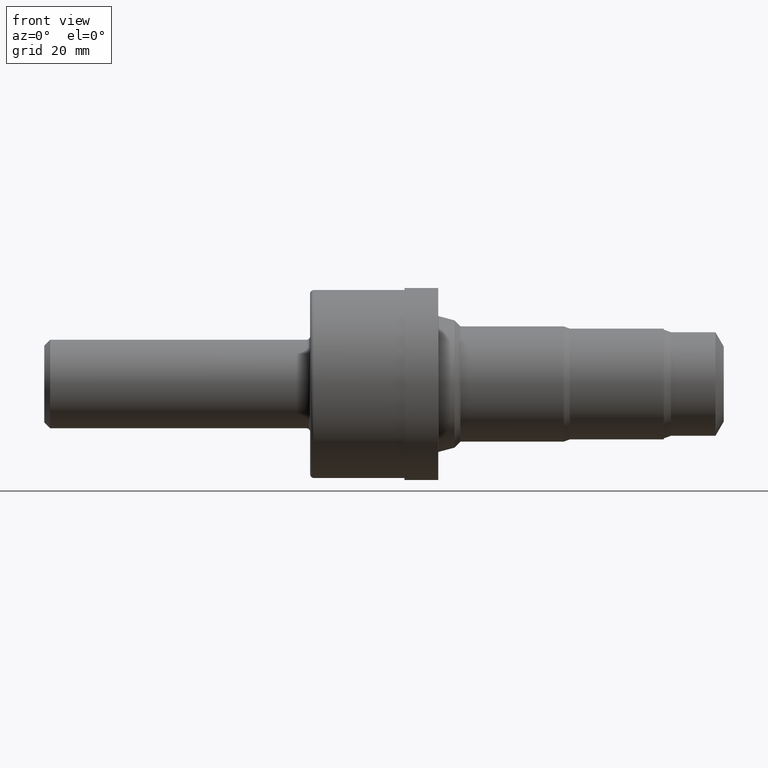
[diagram: clean part render]
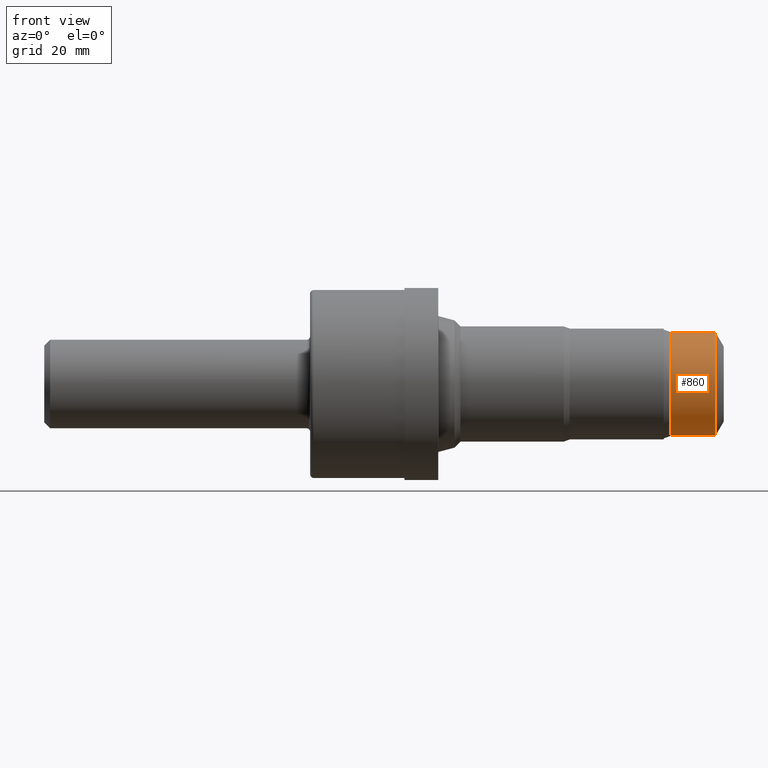
[diagram: same view with one face highlighted and labeled with its STEP entity id]
A machine part, front view. The second image highlights one B-rep face of the part: STEP entity #860.
In plain terms, the highlighted cylindrical surface (partial cylindrical patch) has radius 11.1227 mm, axis along (-1, -0, -0).
Its self-contained STEP definition (entity closure, byte-faithful):
#12 = VERTEX_POINT ( 'NONE', #132 ) ;
#72 = EDGE_CURVE ( 'NONE', #12, #241, #933, .T. ) ;
#96 = ORIENTED_EDGE ( 'NONE', *, *, #628, .F. ) ;
#116 = ORIENTED_EDGE ( 'NONE', *, *, #279, .F. ) ;
#132 = CARTESIAN_POINT ( 'NONE',  ( 5.679999999999999716, 0.0000000000000000000, 0.4379000000000000115 ) ) ;
#170 = VERTEX_POINT ( 'NONE', #636 ) ;
#189 = CARTESIAN_POINT ( 'NONE',  ( 0.0000000000000000000, 0.0000000000000000000, 0.4379000000000000115 ) ) ;
#194 = CARTESIAN_POINT ( 'NONE',  ( 5.303999999999998494, 0.0000000000000000000, 0.0000000000000000000 ) ) ;
#201 = DIRECTION ( 'NONE',  ( -1.000000000000000000, -0.0000000000000000000, -0.0000000000000000000 ) ) ;
#215 = DIRECTION ( 'NONE',  ( -1.000000000000000000, -0.0000000000000000000, -0.0000000000000000000 ) ) ;
#241 = VERTEX_POINT ( 'NONE', #327 ) ;
#254 = EDGE_CURVE ( 'NONE', #170, #12, #946, .T. ) ;
#267 = CIRCLE ( 'NONE', #913, 0.4379000000000000115 ) ;
#279 = EDGE_CURVE ( 'NONE', #170, #474, #527, .T. ) ;
#316 = DIRECTION ( 'NONE',  ( -1.000000000000000000, -0.0000000000000000000, -0.0000000000000000000 ) ) ;
#327 = CARTESIAN_POINT ( 'NONE',  ( 5.303999999999998494, 0.0000000000000000000, 0.4379000000000000115 ) ) ;
#331 = FACE_OUTER_BOUND ( 'NONE', #608, .T. ) ;
#361 = AXIS2_PLACEMENT_3D ( 'NONE', #955, #215, #691 ) ;
#414 = AXIS2_PLACEMENT_3D ( 'NONE', #921, #927, #604 ) ;
#474 = VERTEX_POINT ( 'NONE', #496 ) ;
#496 = CARTESIAN_POINT ( 'NONE',  ( 5.303999999999998494, 5.362728333466259899E-17, -0.4379000000000000115 ) ) ;
#527 = LINE ( 'NONE', #869, #710 ) ;
#540 = ORIENTED_EDGE ( 'NONE', *, *, #254, .T. ) ;
#604 = DIRECTION ( 'NONE',  ( 0.0000000000000000000, 0.0000000000000000000, 1.000000000000000000 ) ) ;
#608 = EDGE_LOOP ( 'NONE', ( #116, #540, #680, #96 ) ) ;
#628 = EDGE_CURVE ( 'NONE', #474, #241, #267, .T. ) ;
#636 = CARTESIAN_POINT ( 'NONE',  ( 5.679999999999999716, 5.362728333466260515E-17, -0.4379000000000000115 ) ) ;
#640 = DIRECTION ( 'NONE',  ( 0.0000000000000000000, 0.0000000000000000000, 1.000000000000000000 ) ) ;
#680 = ORIENTED_EDGE ( 'NONE', *, *, #72, .T. ) ;
#682 = CYLINDRICAL_SURFACE ( 'NONE', #414, 0.4379000000000000115 ) ;
#691 = DIRECTION ( 'NONE',  ( 0.0000000000000000000, 0.0000000000000000000, 1.000000000000000000 ) ) ;
#697 = VECTOR ( 'NONE', #852, 39.37007874015748143 ) ;
#710 = VECTOR ( 'NONE', #316, 39.37007874015748143 ) ;
#852 = DIRECTION ( 'NONE',  ( -1.000000000000000000, -0.0000000000000000000, -0.0000000000000000000 ) ) ;
#860 = ADVANCED_FACE ( 'NONE', ( #331 ), #682, .T. ) ;
#869 = CARTESIAN_POINT ( 'NONE',  ( 0.0000000000000000000, 5.362728333466259899E-17, -0.4379000000000000115 ) ) ;
#913 = AXIS2_PLACEMENT_3D ( 'NONE', #194, #201, #640 ) ;
#921 = CARTESIAN_POINT ( 'NONE',  ( 0.0000000000000000000, 0.0000000000000000000, 0.0000000000000000000 ) ) ;
#927 = DIRECTION ( 'NONE',  ( -1.000000000000000000, -0.0000000000000000000, -0.0000000000000000000 ) ) ;
#933 = LINE ( 'NONE', #189, #697 ) ;
#946 = CIRCLE ( 'NONE', #361, 0.4379000000000000115 ) ;
#955 = CARTESIAN_POINT ( 'NONE',  ( 5.679999999999999716, 0.0000000000000000000, 0.0000000000000000000 ) ) ;